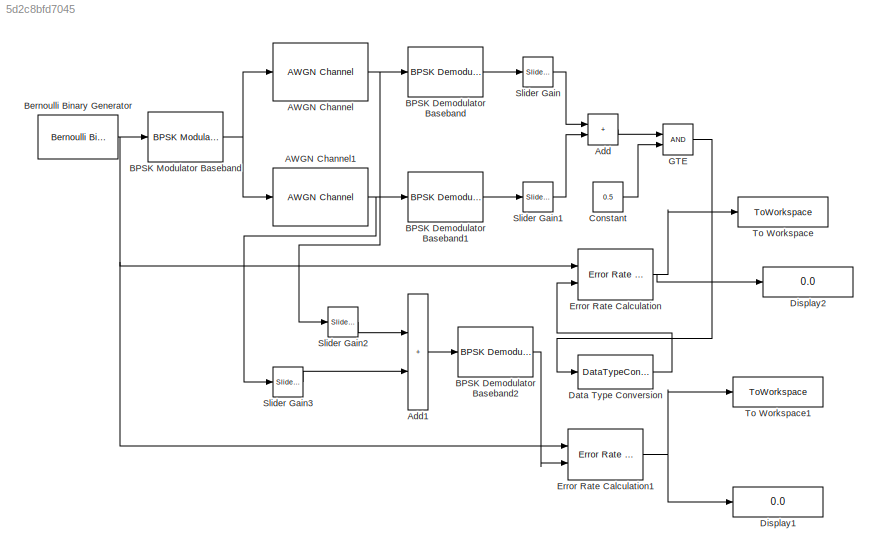
MODEL slx_5d2c8bfd7045
KIND model
CONFIG AbsTol = auto
CONFIG EnableMultiTasking = off
CONFIG FixedStep = auto
CONFIG MaxStep = auto
CONFIG MinStep = auto
CONFIG RelTol = 1e-3
CONFIG SampleTimeConstraint = Unconstrained
CONFIG SolverName = VariableStepAuto
CONFIG StartTime = 0.0
CONFIG StopTime = 10.0
BLOCK [Reference] AWGN Channel  REF=commchan3/AWGN
Channel
  Ports = [1, 1]
  SourceBlock = commchan3/AWGN\nChannel
  SourceProductBaseCode = CM
  SourceType = AWGN Channel
  UserDataPersistent = on
BLOCK [Reference] AWGN Channel1  REF=commchan3/AWGN
Channel
  Ports = [1, 1]
  SourceBlock = commchan3/AWGN\nChannel
  SourceProductBaseCode = CM
  SourceType = AWGN Channel
  UserDataPersistent = on
BLOCK [Sum] Add
  IconShape = rectangular
  Ports = [2, 1]
BLOCK [Sum] Add1
  IconShape = rectangular
  Ports = [2, 1]
BLOCK [Reference] BPSK Demodulator Baseband  REF=commdigbbndpm3/BPSK
Demodulator
Baseband
  Ports = [1, 1]
  SourceBlock = commdigbbndpm3/BPSK\nDemodulator\nBaseband
  SourceProductBaseCode = CM
  SourceType = BPSK Demodulator Baseband
BLOCK [Reference] BPSK Demodulator Baseband1  REF=commdigbbndpm3/BPSK
Demodulator
Baseband
  Ports = [1, 1]
  SourceBlock = commdigbbndpm3/BPSK\nDemodulator\nBaseband
  SourceProductBaseCode = CM
  SourceType = BPSK Demodulator Baseband
BLOCK [Reference] BPSK Demodulator Baseband2  REF=commdigbbndpm3/BPSK
Demodulator
Baseband
  Ports = [1, 1]
  SourceBlock = commdigbbndpm3/BPSK\nDemodulator\nBaseband
  SourceProductBaseCode = CM
  SourceType = BPSK Demodulator Baseband
BLOCK [Reference] BPSK Modulator Baseband  REF=commdigbbndpm3/BPSK
Modulator
Baseband
  Ports = [1, 1]
  SourceBlock = commdigbbndpm3/BPSK\nModulator\nBaseband
  SourceProductBaseCode = CM
  SourceType = BPSK Modulator Baseband
BLOCK [Reference] Bernoulli Binary Generator  REF=commrandsrc3/Bernoulli Binary
Generator
  Ports = [0, 1]
  SourceBlock = commrandsrc3/Bernoulli Binary\nGenerator
  SourceProductBaseCode = CM
  SourceType = Bernoulli Binary Generator
BLOCK [Constant] Constant
  Value = 0.5
BLOCK [DataTypeConversion] Data Type Conversion
  RndMeth = Floor
  SaturateOnIntegerOverflow = off
BLOCK [Display] Display1
  Decimation = 1
  Ports = [1]
BLOCK [Display] Display2
  Decimation = 1
  Ports = [1]
BLOCK [Reference] Error Rate Calculation  REF=commsink2/Error Rate
Calculation
  Ports = [2, 1]
  SourceBlock = commsink2/Error Rate\nCalculation
  SourceProductBaseCode = CM
  SourceType = Error Rate Calculation
BLOCK [Reference] Error Rate Calculation1  REF=commsink2/Error Rate
Calculation
  Ports = [2, 1]
  SourceBlock = commsink2/Error Rate\nCalculation
  SourceProductBaseCode = CM
  SourceType = Error Rate Calculation
BLOCK [RelationalOperator] GTE
  InputSameDT = off
  OutDataTypeStr = boolean
  Ports = [2, 1]
  RndMeth = Simplest
BLOCK [Reference] Slider Gain  REF=simulink/Math
Operations/Slider
Gain
  Ports = [1, 1]
  SourceBlock = simulink/Math\nOperations/Slider\nGain
  SourceProductBaseCode = SL
  SourceType = Slider Gain
BLOCK [Reference] Slider Gain1  REF=simulink/Math
Operations/Slider
Gain
  Ports = [1, 1]
  SourceBlock = simulink/Math\nOperations/Slider\nGain
  SourceProductBaseCode = SL
  SourceType = Slider Gain
BLOCK [Reference] Slider Gain2  REF=simulink/Math
Operations/Slider
Gain
  Ports = [1, 1]
  SourceBlock = simulink/Math\nOperations/Slider\nGain
  SourceProductBaseCode = SL
  SourceType = Slider Gain
BLOCK [Reference] Slider Gain3  REF=simulink/Math
Operations/Slider
Gain
  Ports = [1, 1]
  SourceBlock = simulink/Math\nOperations/Slider\nGain
  SourceProductBaseCode = SL
  SourceType = Slider Gain
BLOCK [ToWorkspace] To Workspace
  FixptAsFi = on
  MaxDataPoints = inf
  Ports = [1]
  SampleTime = -1
  SaveFormat = Timeseries
  VariableName = BER
BLOCK [ToWorkspace] To Workspace1
  FixptAsFi = on
  MaxDataPoints = inf
  Ports = [1]
  SampleTime = -1
  SaveFormat = Timeseries
  VariableName = BER1
NET AWGN Channel1:1 -> BPSK Demodulator Baseband1:1, Slider Gain3:1
NET AWGN Channel:1 -> BPSK Demodulator Baseband:1, Slider Gain2:1
LINE Add1:1 -> BPSK Demodulator Baseband2:1
LINE Add:1 -> GTE:1
LINE BPSK Demodulator Baseband1:1 -> Slider Gain1:1
LINE BPSK Demodulator Baseband2:1 -> Error Rate Calculation1:2
LINE BPSK Demodulator Baseband:1 -> Slider Gain:1
NET BPSK Modulator Baseband:1 -> AWGN Channel1:1, AWGN Channel:1
NET Bernoulli Binary Generator:1 -> BPSK Modulator Baseband:1, Error Rate Calculation1:1, Error Rate Calculation:1
LINE Constant:1 -> GTE:2
LINE Data Type Conversion:1 -> Error Rate Calculation:2
NET Error Rate Calculation1:1 -> Display1:1, To Workspace1:1
NET Error Rate Calculation:1 -> Display2:1, To Workspace:1
LINE GTE:1 -> Data Type Conversion:1
LINE Slider Gain1:1 -> Add:2
LINE Slider Gain2:1 -> Add1:1
LINE Slider Gain3:1 -> Add1:2
LINE Slider Gain:1 -> Add:1
note: NET lines group one-source signal fan-out (src -> all destinations, sorted); 1:1 wires keep LINE
